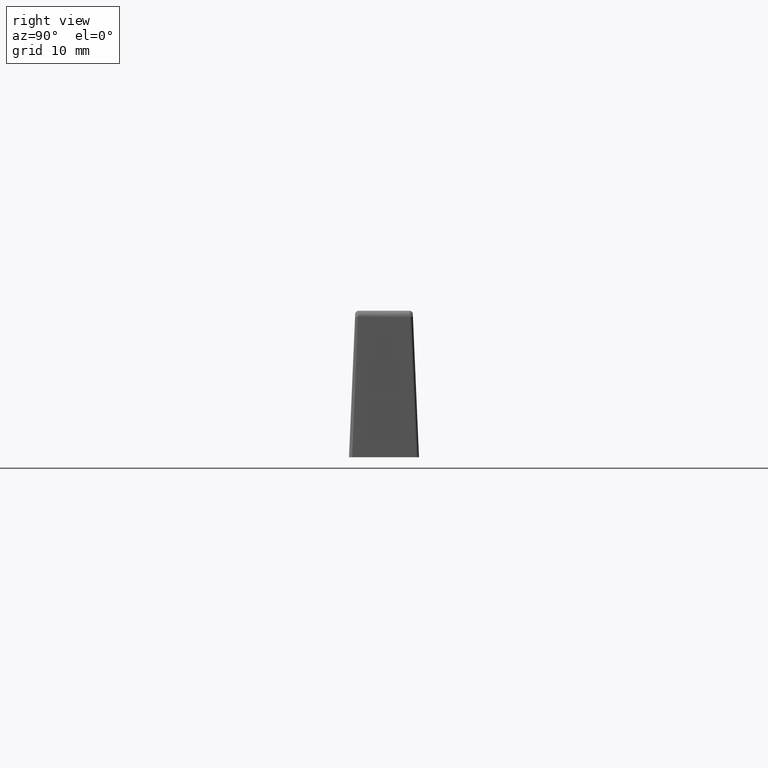
[diagram: clean part render]
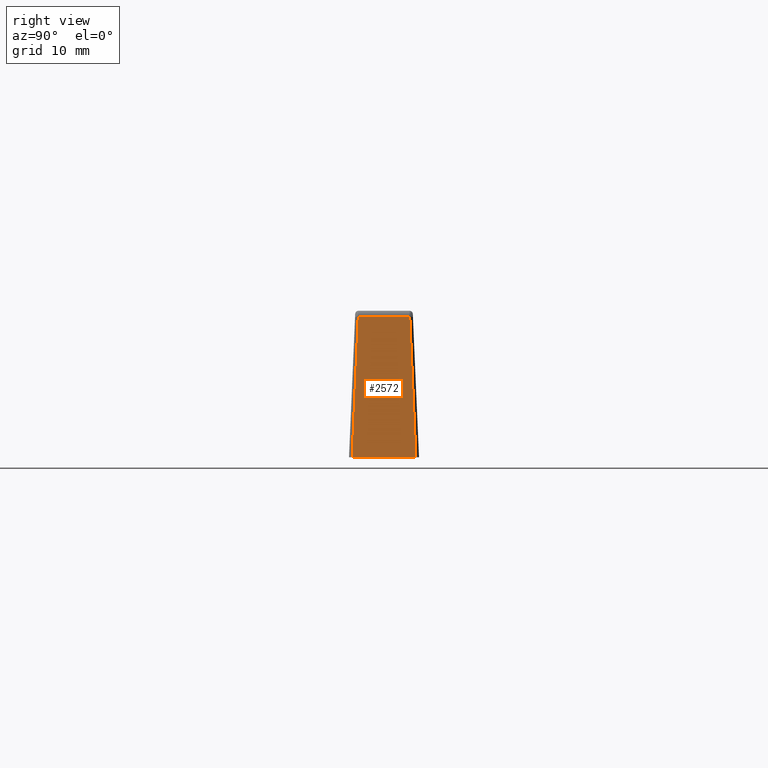
[diagram: same view with one face highlighted and labeled with its STEP entity id]
A machine part, right view. The second image highlights one B-rep face of the part: STEP entity #2572.
In plain terms, the highlighted face is a freeform B-spline surface patch.
Its self-contained STEP definition (entity closure, byte-faithful):
#1408=CARTESIAN_POINT('',(55.999800000000000,-5.000471523240460,0.0));
#1409=VERTEX_POINT('',#1408);
#1425=CARTESIAN_POINT('',(55.041781793214902,-4.042231952913090,22.043718932801401));
#1426=VERTEX_POINT('',#1425);
#1427=CARTESIAN_POINT('',(55.041781793214902,-4.042231952913090,22.043718932801401));
#1428=CARTESIAN_POINT('',(55.999800000000000,-5.000471523240460,0.0));
#1429=QUASI_UNIFORM_CURVE('',1,(#1427,#1428),.UNSPECIFIED.,.F.,.U.);
#1430=EDGE_CURVE('',#1426,#1409,#1429,.T.);
#1771=CARTESIAN_POINT('',(55.999800000000000,5.000471523240460,0.0));
#1772=VERTEX_POINT('',#1771);
#1793=CARTESIAN_POINT('',(55.041781793214902,4.042231952913310,22.043718932801401));
#1794=VERTEX_POINT('',#1793);
#1808=CARTESIAN_POINT('',(55.999800000000000,5.000471523240460,0.0));
#1809=CARTESIAN_POINT('',(55.041781793214902,4.042231952913310,22.043718932801401));
#1810=QUASI_UNIFORM_CURVE('',1,(#1808,#1809),.UNSPECIFIED.,.F.,.U.);
#1811=EDGE_CURVE('',#1772,#1794,#1810,.T.);
#2373=CARTESIAN_POINT('',(55.041781793214902,4.042231952913310,22.043718932801401));
#2374=CARTESIAN_POINT('',(55.041781793214902,-4.042231952913090,22.043718932801401));
#2375=QUASI_UNIFORM_CURVE('',1,(#2373,#2374),.UNSPECIFIED.,.F.,.U.);
#2376=EDGE_CURVE('',#1794,#1426,#2375,.T.);
#2557=CARTESIAN_POINT('',(56.047653013142387,-5.500018702910113,-1.101083846143445));
#2558=CARTESIAN_POINT('',(54.993928831464487,-5.500018702910113,23.144801596427609));
#2559=CARTESIAN_POINT('',(56.047653013142387,5.500018881740910,-1.101083846143445));
#2560=CARTESIAN_POINT('',(54.993928831464487,5.500018881740910,23.144801596427609));
#2561=B_SPLINE_SURFACE_WITH_KNOTS('',1,1,((#2557,#2559),(#2558,#2560)),.UNSPECIFIED.,.F.,.F.,.U.,(2,2),(2,2),(0.0,24.268772023844381),(0.0,11.000037584651020),.UNSPECIFIED.);
#2562=CARTESIAN_POINT('',(55.999800000000000,5.000471523240460,0.0));
#2563=CARTESIAN_POINT('',(55.999800000000000,-5.000471523240460,0.0));
#2564=QUASI_UNIFORM_CURVE('',1,(#2562,#2563),.UNSPECIFIED.,.F.,.U.);
#2565=EDGE_CURVE('',#1772,#1409,#2564,.T.);
#2566=ORIENTED_EDGE('',*,*,#2565,.F.);
#2567=ORIENTED_EDGE('',*,*,#1811,.T.);
#2568=ORIENTED_EDGE('',*,*,#2376,.T.);
#2569=ORIENTED_EDGE('',*,*,#1430,.T.);
#2570=EDGE_LOOP('',(#2566,#2567,#2568,#2569));
#2571=FACE_OUTER_BOUND('',#2570,.T.);
#2572=ADVANCED_FACE('',(#2571),#2561,.F.);